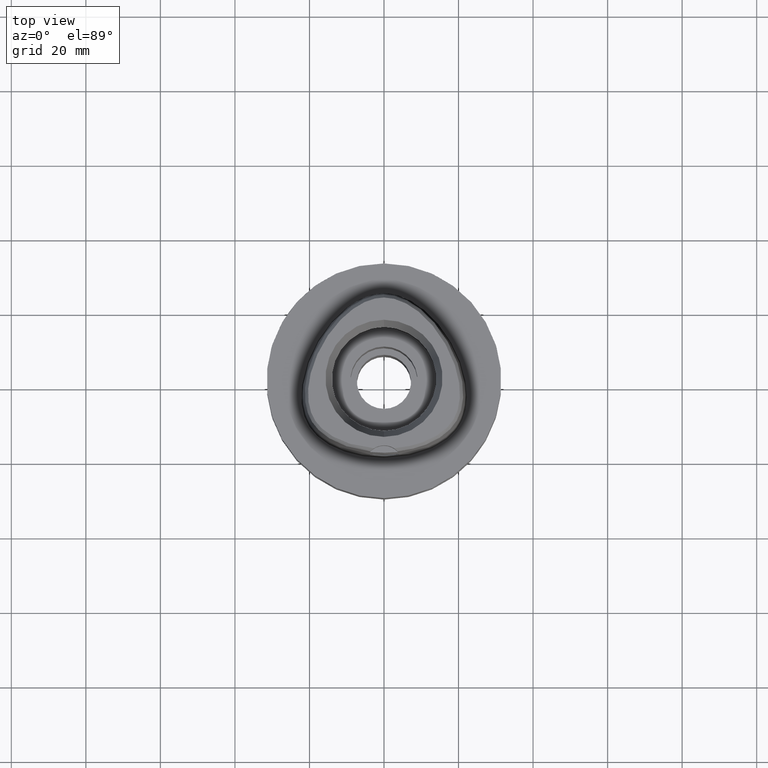
[diagram: clean part render]
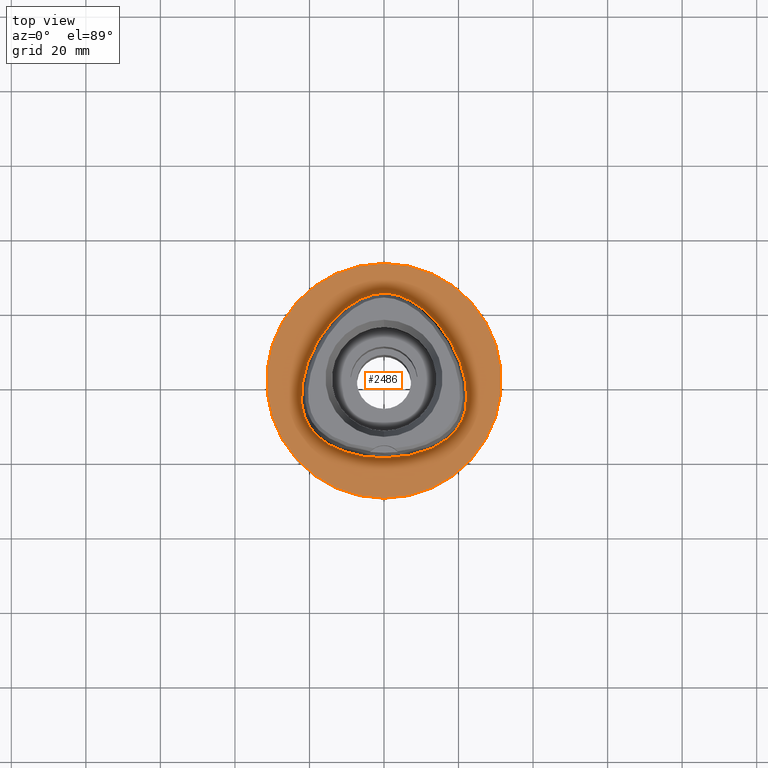
[diagram: same view with one face highlighted and labeled with its STEP entity id]
A machine part, top view. The second image highlights one B-rep face of the part: STEP entity #2486.
In plain terms, the highlighted planar face has unit normal (0, 0, -1).
Its self-contained STEP definition (entity closure, byte-faithful):
#280=CARTESIAN_POINT('',(0.E0,1.308535104889E-14,-1.953992523340E-14));
#281=DIRECTION('',(0.E0,0.E0,-1.E0));
#282=DIRECTION('',(0.E0,-1.E0,0.E0));
#283=AXIS2_PLACEMENT_3D('',#280,#281,#282);
#288=CARTESIAN_POINT('',(0.E0,1.308535104889E-14,-1.953992523340E-14));
#289=DIRECTION('',(0.E0,0.E0,-1.E0));
#290=DIRECTION('',(0.E0,1.E0,0.E0));
#291=AXIS2_PLACEMENT_3D('',#288,#289,#290);
#296=CARTESIAN_POINT('',(-6.994803601024E-12,-2.0675E1,7.419990547911E-14));
#297=CARTESIAN_POINT('',(9.696277241607E-1,-2.0675E1,7.419990547911E-14));
#298=CARTESIAN_POINT('',(2.869323182917E0,-2.059665206108E1,
-3.443629597593E-14));
#299=CARTESIAN_POINT('',(5.628892434573E0,-2.025948305172E1,0.E0));
#300=CARTESIAN_POINT('',(8.212436796028E0,-1.972494186774E1,0.E0));
#301=CARTESIAN_POINT('',(1.055597973773E1,-1.902990564621E1,0.E0));
#302=CARTESIAN_POINT('',(1.262660344190E1,-1.821489800558E1,0.E0));
#303=CARTESIAN_POINT('',(1.442647808134E1,-1.731401627908E1,0.E0));
#304=CARTESIAN_POINT('',(1.597839645051E1,-1.634840968166E1,0.E0));
#305=CARTESIAN_POINT('',(1.729281960120E1,-1.534469091911E1,0.E0));
#306=CARTESIAN_POINT('',(1.840650512325E1,-1.430616174029E1,0.E0));
#307=CARTESIAN_POINT('',(1.934077756395E1,-1.323800062297E1,0.E0));
#308=CARTESIAN_POINT('',(2.012500176300E1,-1.212640046703E1,0.E0));
#309=CARTESIAN_POINT('',(2.077630963133E1,-1.094552325843E1,0.E0));
#310=CARTESIAN_POINT('',(2.130486514484E1,-9.682181809785E0,0.E0));
#311=CARTESIAN_POINT('',(2.172376206675E1,-8.295193919519E0,0.E0));
#312=CARTESIAN_POINT('',(2.202312056010E1,-6.764018905119E0,0.E0));
#313=CARTESIAN_POINT('',(2.218684730726E1,-5.054629295905E0,0.E0));
#314=CARTESIAN_POINT('',(2.218811908827E1,-3.165592134656E0,0.E0));
#315=CARTESIAN_POINT('',(2.199905226159E1,-1.084853794272E0,0.E0));
#316=CARTESIAN_POINT('',(2.158830013197E1,1.183756809833E0,0.E0));
#317=CARTESIAN_POINT('',(2.092943410609E1,3.612537132412E0,0.E0));
#318=CARTESIAN_POINT('',(2.000599650194E1,6.153756352748E0,0.E0));
#319=CARTESIAN_POINT('',(1.882401156021E1,8.726465449099E0,0.E0));
#320=CARTESIAN_POINT('',(1.741188367108E1,1.123978369355E1,0.E0));
#321=CARTESIAN_POINT('',(1.581553256589E1,1.360754052028E1,0.E0));
#322=CARTESIAN_POINT('',(1.410265285497E1,1.574816844294E1,0.E0));
#323=CARTESIAN_POINT('',(1.233221950781E1,1.761876304960E1,0.E0));
#324=CARTESIAN_POINT('',(1.056748826054E1,1.919100276061E1,0.E0));
#325=CARTESIAN_POINT('',(8.844934705549E0,2.047447793490E1,0.E0));
#326=CARTESIAN_POINT('',(7.188492926757E0,2.148988068005E1,0.E0));
#327=CARTESIAN_POINT('',(5.609342914043E0,2.226541486842E1,0.E0));
#328=CARTESIAN_POINT('',(4.104373905572E0,2.283161133478E1,0.E0));
#329=CARTESIAN_POINT('',(2.671691629950E0,2.321243880612E1,0.E0));
#330=CARTESIAN_POINT('',(1.305815271442E0,2.342910893410E1,
-3.311380480877E-14));
#331=CARTESIAN_POINT('',(4.290431846877E-1,2.347499999999E1,
7.135033304924E-14));
#332=CARTESIAN_POINT('',(4.298360401327E-11,2.347499999999E1,
7.135033304924E-14));
#337=CARTESIAN_POINT('',(4.298360401327E-11,2.347499999999E1,
7.135033304924E-14));
#338=CARTESIAN_POINT('',(-4.268431652817E-1,2.347499999999E1,
7.135033304924E-14));
#339=CARTESIAN_POINT('',(-1.299582595087E0,2.342957780291E1,
-3.311380480877E-14));
#340=CARTESIAN_POINT('',(-2.660545604659E0,2.321465362942E1,0.E0));
#341=CARTESIAN_POINT('',(-4.089354381965E0,2.283630829898E1,0.E0));
#342=CARTESIAN_POINT('',(-5.592579428581E0,2.227272881030E1,0.E0));
#343=CARTESIAN_POINT('',(-7.175783343800E0,2.149710906909E1,0.E0));
#344=CARTESIAN_POINT('',(-8.837870592112E0,2.047954159061E1,0.E0));
#345=CARTESIAN_POINT('',(-1.056816730501E1,1.919091738258E1,0.E0));
#346=CARTESIAN_POINT('',(-1.234253973595E1,1.760914993630E1,0.E0));
#347=CARTESIAN_POINT('',(-1.411939139405E1,1.572952080492E1,0.E0));
#348=CARTESIAN_POINT('',(-1.584215619943E1,1.357199386086E1,0.E0));
#349=CARTESIAN_POINT('',(-1.744156869874E1,1.119203316103E1,0.E0));
#350=CARTESIAN_POINT('',(-1.885464388265E1,8.666961429921E0,0.E0));
#351=CARTESIAN_POINT('',(-2.003562024101E1,6.082172675441E0,0.E0));
#352=CARTESIAN_POINT('',(-2.095452893922E1,3.533839521697E0,0.E0));
#353=CARTESIAN_POINT('',(-2.160742167817E1,1.099535441129E0,0.E0));
#354=CARTESIAN_POINT('',(-2.201051597826E1,-1.169237038477E0,0.E0));
#355=CARTESIAN_POINT('',(-2.219186189283E1,-3.248580015592E0,0.E0));
#356=CARTESIAN_POINT('',(-2.218287436059E1,-5.133390226506E0,0.E0));
#357=CARTESIAN_POINT('',(-2.201291558642E1,-6.833217386055E0,0.E0));
#358=CARTESIAN_POINT('',(-2.170723729812E1,-8.361930605835E0,0.E0));
#359=CARTESIAN_POINT('',(-2.128234652504E1,-9.743801160779E0,0.E0));
#360=CARTESIAN_POINT('',(-2.075656204676E1,-1.098298342879E1,0.E0));
#361=CARTESIAN_POINT('',(-2.012881833859E1,-1.211671448665E1,0.E0));
#362=CARTESIAN_POINT('',(-1.937009162576E1,-1.319963007617E1,0.E0));
#363=CARTESIAN_POINT('',(-1.844494425836E1,-1.426628652231E1,0.E0));
#364=CARTESIAN_POINT('',(-1.733976037796E1,-1.530501824841E1,0.E0));
#365=CARTESIAN_POINT('',(-1.602798413986E1,-1.631416661800E1,0.E0));
#366=CARTESIAN_POINT('',(-1.448365618437E1,-1.728204670962E1,0.E0));
#367=CARTESIAN_POINT('',(-1.268242851313E1,-1.819031510896E1,0.E0));
#368=CARTESIAN_POINT('',(-1.060823937047E1,-1.901217014935E1,0.E0));
#369=CARTESIAN_POINT('',(-8.260157071028E0,-1.971316794097E1,0.E0));
#370=CARTESIAN_POINT('',(-5.666486665709E0,-2.025401648617E1,0.E0));
#371=CARTESIAN_POINT('',(-2.876092146654E0,-2.059674801281E1,
-3.443629597593E-14));
#372=CARTESIAN_POINT('',(-9.709694935581E-1,-2.0675E1,7.419990547911E-14));
#373=CARTESIAN_POINT('',(-6.994803601024E-12,-2.0675E1,7.419990547911E-14));
#1626=VERTEX_POINT('',#337);
#1627=VERTEX_POINT('',#373);
#1632=CARTESIAN_POINT('',(0.E0,-3.15E1,-1.953992523340E-14));
#1633=CARTESIAN_POINT('',(0.E0,3.15E1,-1.953992523340E-14));
#1634=VERTEX_POINT('',#1632);
#1635=VERTEX_POINT('',#1633);
#2470=CARTESIAN_POINT('',(0.E0,1.224646799147E-14,0.E0));
#2471=DIRECTION('',(0.E0,0.E0,-1.E0));
#2472=DIRECTION('',(0.E0,-1.E0,0.E0));
#2473=AXIS2_PLACEMENT_3D('',#2470,#2471,#2472);
#2474=PLANE('',#2473);
#2476=ORIENTED_EDGE('',*,*,#2475,.T.);
#2478=ORIENTED_EDGE('',*,*,#2477,.T.);
#2479=EDGE_LOOP('',(#2476,#2478));
#2480=FACE_OUTER_BOUND('',#2479,.F.);
#2482=ORIENTED_EDGE('',*,*,#2481,.T.);
#2483=ORIENTED_EDGE('',*,*,#2453,.T.);
#2484=EDGE_LOOP('',(#2482,#2483));
#2485=FACE_BOUND('',#2484,.F.);
#284=CIRCLE('',#283,3.15E1);
#292=CIRCLE('',#291,3.15E1);
#333=B_SPLINE_CURVE_WITH_KNOTS('',3,(#296,#297,#298,#299,#300,#301,#302,#303,
#304,#305,#306,#307,#308,#309,#310,#311,#312,#313,#314,#315,#316,#317,#318,#319,
#320,#321,#322,#323,#324,#325,#326,#327,#328,#329,#330,#331,#332),.UNSPECIFIED.,
.F.,.F.,(4,1,1,1,1,1,1,1,1,1,1,1,1,1,1,1,1,1,1,1,1,1,1,1,1,1,1,1,1,1,1,1,1,1,4),
(0.E0,2.941176470588E-2,5.882352941176E-2,8.823529411765E-2,1.176470588235E-1,
1.470588235294E-1,1.764705882353E-1,2.058823529412E-1,2.352941176471E-1,
2.647058823529E-1,2.941176470588E-1,3.235294117647E-1,3.529411764706E-1,
3.823529411765E-1,4.117647058824E-1,4.411764705882E-1,4.705882352941E-1,5.E-1,
5.294117647059E-1,5.588235294118E-1,5.882352941176E-1,6.176470588235E-1,
6.470588235294E-1,6.764705882353E-1,7.058823529412E-1,7.352941176471E-1,
7.647058823529E-1,7.941176470588E-1,8.235294117647E-1,8.529411764706E-1,
8.823529411765E-1,9.117647058824E-1,9.411764705882E-1,9.705882352941E-1,1.E0),
.UNSPECIFIED.);
#374=B_SPLINE_CURVE_WITH_KNOTS('',3,(#337,#338,#339,#340,#341,#342,#343,#344,
#345,#346,#347,#348,#349,#350,#351,#352,#353,#354,#355,#356,#357,#358,#359,#360,
#361,#362,#363,#364,#365,#366,#367,#368,#369,#370,#371,#372,#373),.UNSPECIFIED.,
.F.,.F.,(4,1,1,1,1,1,1,1,1,1,1,1,1,1,1,1,1,1,1,1,1,1,1,1,1,1,1,1,1,1,1,1,1,1,4),
(0.E0,2.941176470588E-2,5.882352941176E-2,8.823529411765E-2,1.176470588235E-1,
1.470588235294E-1,1.764705882353E-1,2.058823529412E-1,2.352941176471E-1,
2.647058823529E-1,2.941176470588E-1,3.235294117647E-1,3.529411764706E-1,
3.823529411765E-1,4.117647058824E-1,4.411764705882E-1,4.705882352941E-1,5.E-1,
5.294117647059E-1,5.588235294118E-1,5.882352941176E-1,6.176470588235E-1,
6.470588235294E-1,6.764705882353E-1,7.058823529412E-1,7.352941176471E-1,
7.647058823529E-1,7.941176470588E-1,8.235294117647E-1,8.529411764706E-1,
8.823529411765E-1,9.117647058824E-1,9.411764705882E-1,9.705882352941E-1,1.E0),
.UNSPECIFIED.);
#2453=EDGE_CURVE('',#1626,#1627,#374,.T.);
#2475=EDGE_CURVE('',#1634,#1635,#284,.T.);
#2477=EDGE_CURVE('',#1635,#1634,#292,.T.);
#2481=EDGE_CURVE('',#1627,#1626,#333,.T.);
#2486=ADVANCED_FACE('',(#2480,#2485),#2474,.F.);